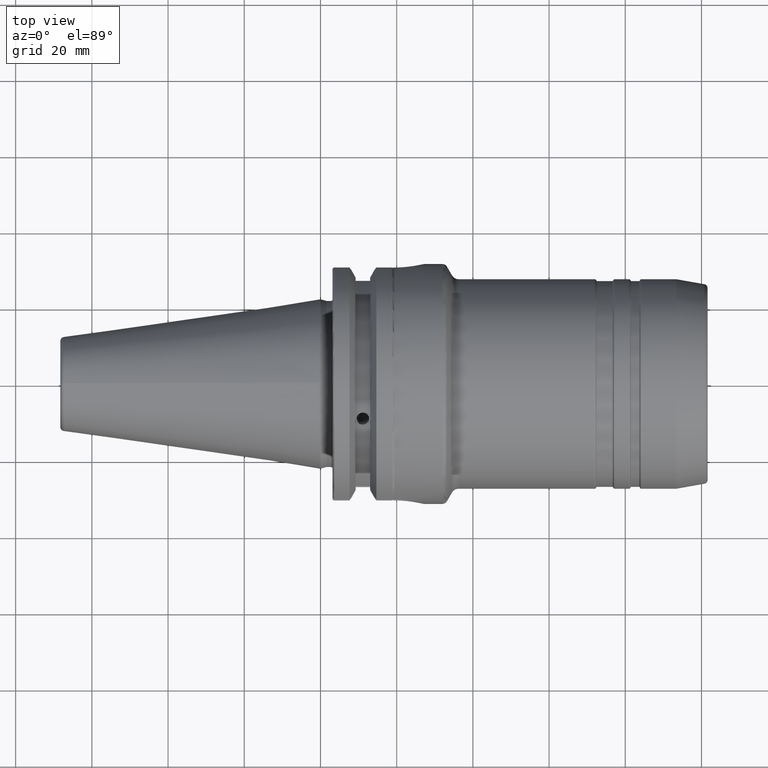
[diagram: clean part render]
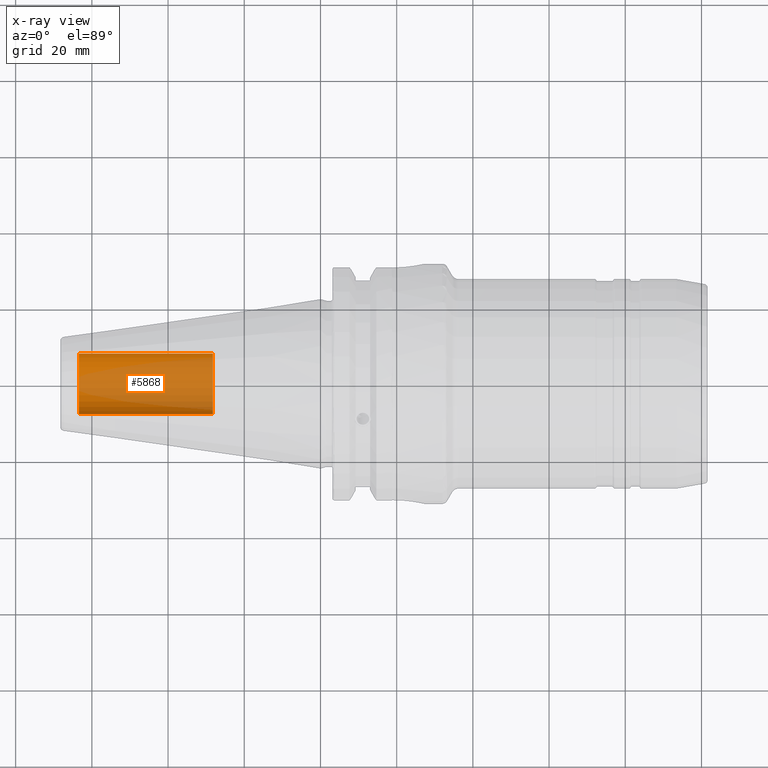
[diagram: x-ray — body ghosted, one internal face saturated and labeled with its STEP entity id]
A machine part, top view, then the same camera in x-ray: the body is ghosted and one INTERNAL B-rep face — a face not visible from any outside direction — is saturated and labeled: STEP entity #5868.
In plain terms, the highlighted cylindrical surface (edge-blend (fillet) strip) has radius 7.9375 mm, axis along (-1, 0, 0).
Its self-contained STEP definition (entity closure, byte-faithful):
#5803=CARTESIAN_POINT('',(-6.345E1,0.E0,0.E0));
#5804=DIRECTION('',(1.E0,0.E0,0.E0));
#5805=DIRECTION('',(0.E0,-1.E0,0.E0));
#5806=AXIS2_PLACEMENT_3D('',#5803,#5804,#5805);
#5813=DIRECTION('',(1.E0,0.E0,0.E0));
#5814=VECTOR('',#5813,3.52E1);
#5815=CARTESIAN_POINT('',(-6.345E1,-7.9375E0,0.E0));
#5816=LINE('',#5815,#5814);
#5817=DIRECTION('',(1.E0,0.E0,0.E0));
#5818=VECTOR('',#5817,3.52E1);
#5819=CARTESIAN_POINT('',(-6.345E1,7.9375E0,0.E0));
#5820=LINE('',#5819,#5818);
#5826=CARTESIAN_POINT('',(-2.825E1,0.E0,0.E0));
#5827=DIRECTION('',(-1.E0,0.E0,0.E0));
#5828=DIRECTION('',(0.E0,1.E0,0.E0));
#5829=AXIS2_PLACEMENT_3D('',#5826,#5827,#5828);
#5841=CARTESIAN_POINT('',(-2.825E1,7.9375E0,0.E0));
#5842=CARTESIAN_POINT('',(-2.825E1,-7.9375E0,0.E0));
#5843=VERTEX_POINT('',#5841);
#5844=VERTEX_POINT('',#5842);
#5845=CARTESIAN_POINT('',(-6.345E1,7.9375E0,0.E0));
#5846=CARTESIAN_POINT('',(-6.345E1,-7.9375E0,0.E0));
#5847=VERTEX_POINT('',#5845);
#5848=VERTEX_POINT('',#5846);
#5853=CARTESIAN_POINT('',(-1.658367445015E1,0.E0,0.E0));
#5854=DIRECTION('',(-1.E0,0.E0,0.E0));
#5855=DIRECTION('',(0.E0,1.E0,0.E0));
#5856=AXIS2_PLACEMENT_3D('',#5853,#5854,#5855);
#5857=CYLINDRICAL_SURFACE('',#5856,7.9375E0);
#5859=ORIENTED_EDGE('',*,*,#5858,.T.);
#5861=ORIENTED_EDGE('',*,*,#5860,.T.);
#5863=ORIENTED_EDGE('',*,*,#5862,.T.);
#5865=ORIENTED_EDGE('',*,*,#5864,.F.);
#5866=EDGE_LOOP('',(#5859,#5861,#5863,#5865));
#5867=FACE_OUTER_BOUND('',#5866,.F.);
#5868=ADVANCED_FACE('',(#5867),#5857,.F.);
#5807=CIRCLE('',#5806,7.9375E0);
#5830=CIRCLE('',#5829,7.9375E0);
#5858=EDGE_CURVE('',#5848,#5847,#5807,.T.);
#5860=EDGE_CURVE('',#5847,#5843,#5820,.T.);
#5862=EDGE_CURVE('',#5843,#5844,#5830,.T.);
#5864=EDGE_CURVE('',#5848,#5844,#5816,.T.);